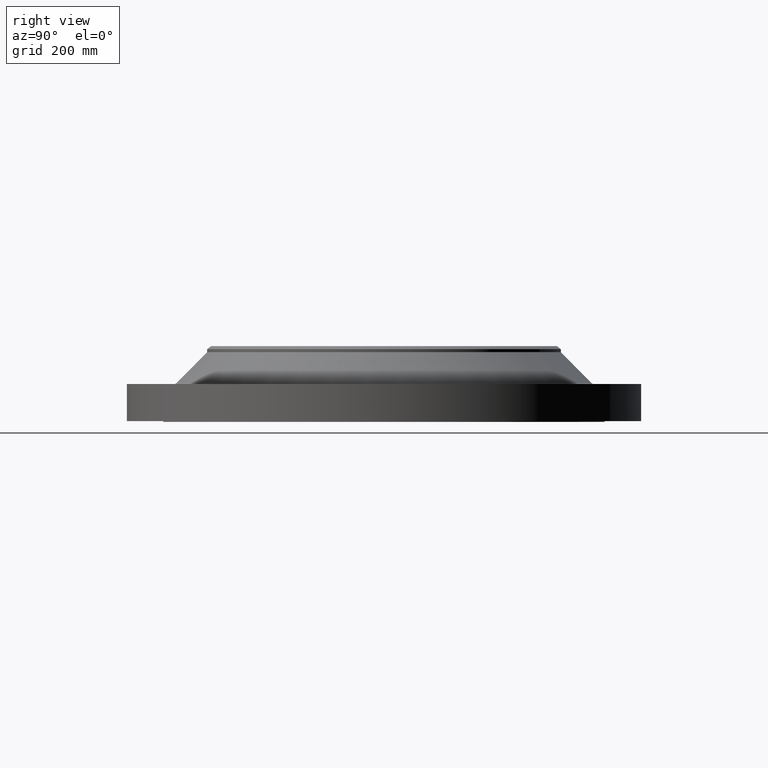
[diagram: clean part render]
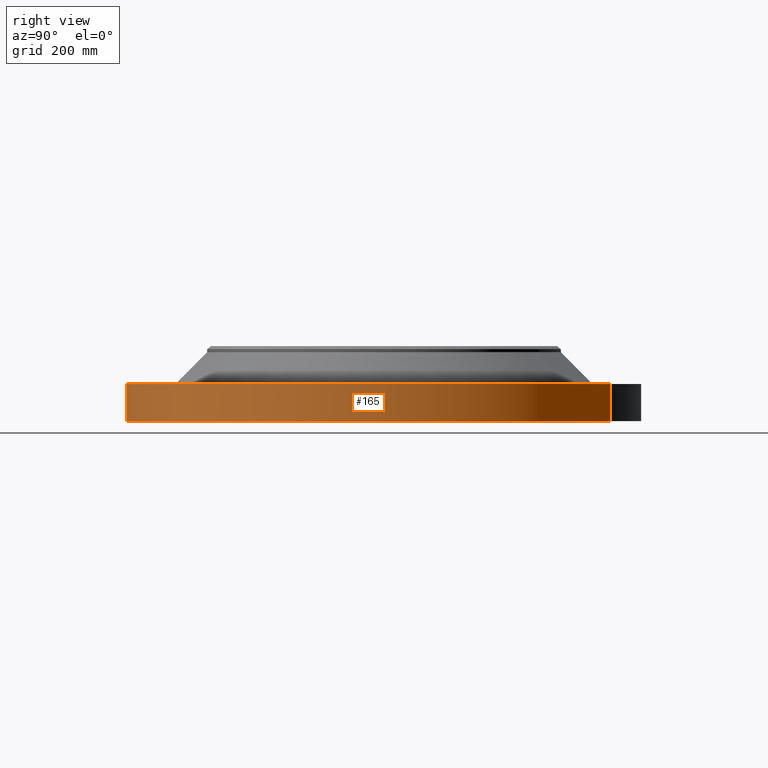
[diagram: same view with one face highlighted and labeled with its STEP entity id]
A machine part, right view. The second image highlights one B-rep face of the part: STEP entity #165.
In plain terms, the highlighted cylindrical surface (partial cylindrical patch) has radius 517.525 mm, axis along (0, 0, -1).
Its self-contained STEP definition (entity closure, byte-faithful):
#109=CARTESIAN_POINT('Axis2P3D Location',(0.,0.,75.9142500003)) ;
#118=CARTESIAN_POINT('Vertex',(-248.114701867,-454.170915344,5.68434188608E-014)) ;
#120=CARTESIAN_POINT('Vertex',(248.114701867,454.170915344,5.68434188608E-014)) ;
#123=CARTESIAN_POINT('Line Origine',(-248.114701867,-454.170915344,37.3380000001)) ;
#127=CARTESIAN_POINT('Vertex',(-248.114701867,-454.170915344,74.6760000003)) ;
#134=CARTESIAN_POINT('Vertex',(248.114701867,454.170915344,74.6760000003)) ;
#137=CARTESIAN_POINT('Line Origine',(248.114701867,454.170915344,37.3380000001)) ;
#149=CARTESIAN_POINT('Axis2P3D Location',(0.,0.,5.68434188608E-014)) ;
#154=CARTESIAN_POINT('Axis2P3D Location',(0.,0.,74.6760000003)) ;
#110=DIRECTION('Axis2P3D Direction',(0.,0.,-1.)) ;
#111=DIRECTION('Axis2P3D XDirection',(0.479425538604,0.87758256189,0.)) ;
#124=DIRECTION('Vector Direction',(0.,0.,-1.)) ;
#138=DIRECTION('Vector Direction',(0.,0.,-1.)) ;
#150=DIRECTION('Axis2P3D Direction',(0.,0.,-1.)) ;
#155=DIRECTION('Axis2P3D Direction',(0.,0.,-1.)) ;
#112=AXIS2_PLACEMENT_3D('Cylinder Axis2P3D',#109,#110,#111) ;
#151=AXIS2_PLACEMENT_3D('Circle Axis2P3D',#149,#150,$) ;
#156=AXIS2_PLACEMENT_3D('Circle Axis2P3D',#154,#155,$) ;
#160=ORIENTED_EDGE('',*,*,#153,.F.) ;
#161=ORIENTED_EDGE('',*,*,#141,.T.) ;
#162=ORIENTED_EDGE('',*,*,#158,.T.) ;
#163=ORIENTED_EDGE('',*,*,#129,.F.) ;
#125=VECTOR('Line Direction',#124,1.) ;
#139=VECTOR('Line Direction',#138,1.) ;
#165=ADVANCED_FACE('PartBody',(#164),#113,.T.) ;
#152=CIRCLE('generated circle',#151,517.525000002) ;
#157=CIRCLE('generated circle',#156,517.525000002) ;
#113=CYLINDRICAL_SURFACE('generated cylinder',#112,517.525000002) ;
#129=EDGE_CURVE('',#119,#128,#126,.F.) ;
#141=EDGE_CURVE('',#121,#135,#140,.F.) ;
#153=EDGE_CURVE('',#121,#119,#152,.T.) ;
#158=EDGE_CURVE('',#135,#128,#157,.T.) ;
#159=EDGE_LOOP('',(#160,#161,#162,#163)) ;
#164=FACE_OUTER_BOUND('',#159,.T.) ;
#126=LINE('Line',#123,#125) ;
#140=LINE('Line',#137,#139) ;
#119=VERTEX_POINT('',#118) ;
#121=VERTEX_POINT('',#120) ;
#128=VERTEX_POINT('',#127) ;
#135=VERTEX_POINT('',#134) ;